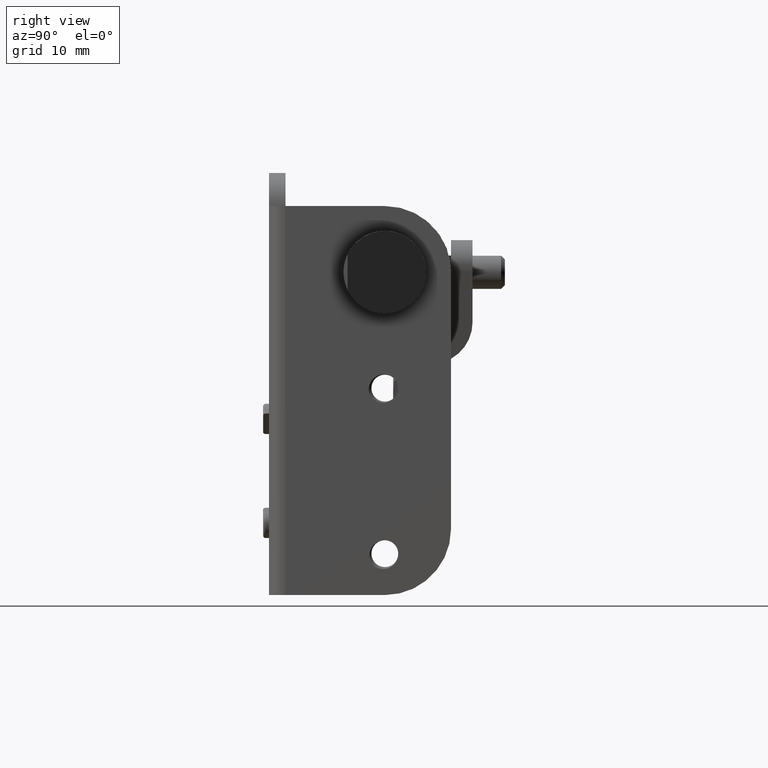
[diagram: clean part render]
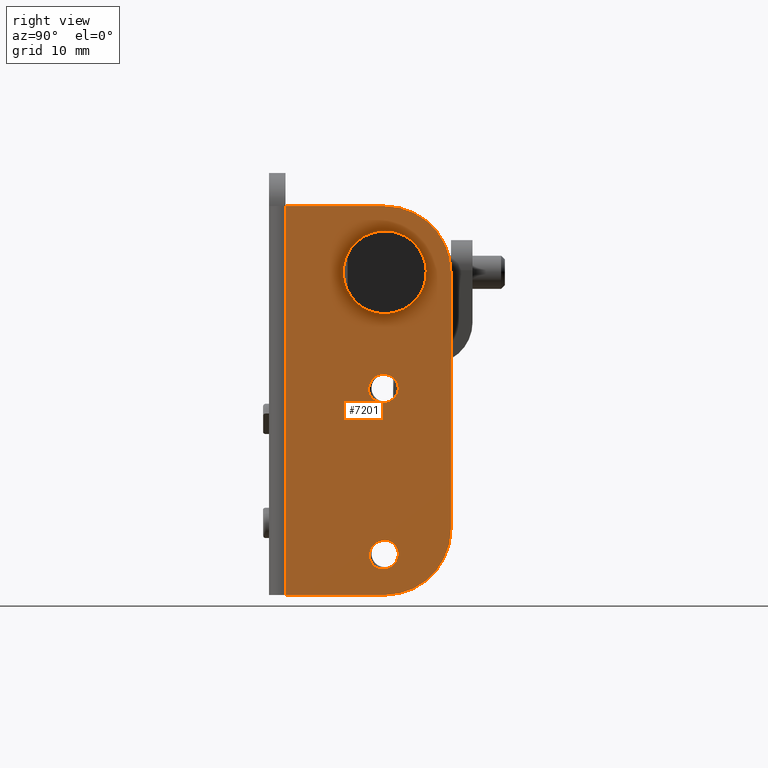
[diagram: same view with one face highlighted and labeled with its STEP entity id]
A machine part, right view. The second image highlights one B-rep face of the part: STEP entity #7201.
In plain terms, the highlighted planar face has unit normal (1, -0, 0).
Its self-contained STEP definition (entity closure, byte-faithful):
#54 = CARTESIAN_POINT ( 'NONE',  ( -46.64999999971276900, 0.09089688833235407000, -19.08893908705833600 ) ) ;
#95 = CARTESIAN_POINT ( 'NONE',  ( -46.64999999971625000, 0.8721309335700865300, -42.48951355338284900 ) ) ;
#153 = EDGE_CURVE ( 'NONE', #14601, #1278, #1425, .T. ) ;
#662 = ORIENTED_EDGE ( 'NONE', *, *, #11229, .T. ) ;
#823 = EDGE_LOOP ( 'NONE', ( #9566, #11637, #2603, #4602 ) ) ;
#892 = CARTESIAN_POINT ( 'NONE',  ( -46.64999999971605100, 1.702725412684022800, -41.69978814831674200 ) ) ;
#944 = CARTESIAN_POINT ( 'NONE',  ( -46.64999999971573900, 0.8146030521401440600, -39.31506493646259100 ) ) ;
#1065 = CARTESIAN_POINT ( 'NONE',  ( -46.64999999971318100, 1.236670818647044500, -22.18215370323088500 ) ) ;
#1078 = FACE_OUTER_BOUND ( 'NONE', #4662, .T. ) ;
#1232 = CARTESIAN_POINT ( 'NONE',  ( -46.64999999971299600, 1.965852508492017300, -20.95167811695760600 ) ) ;
#1278 = VERTEX_POINT ( 'NONE', #7061 ) ;
#1290 = CARTESIAN_POINT ( 'NONE',  ( -46.64999999970430600, -0.2025517188867979900, -19.13767317145630300 ) ) ;
#1310 = CIRCLE ( 'NONE', #14062, 8.000000000000000000 ) ;
#1332 = CARTESIAN_POINT ( 'NONE',  ( -46.64999999971613000, 1.264839274640282100, -42.28761542443570700 ) ) ;
#1425 = CIRCLE ( 'NONE', #5640, 5.000000000000000000 ) ;
#1531 = AXIS2_PLACEMENT_3D ( 'NONE', #10082, #2753, #11316 ) ;
#1682 = LINE ( 'NONE', #14311, #12609 ) ;
#1911 = VECTOR ( 'NONE', #7607, 1000.000000000000000 ) ;
#1986 = VERTEX_POINT ( 'NONE', #7066 ) ;
#2018 = DIRECTION ( 'NONE',  ( 1.000000000000000000, 0.0000000000000000000, -1.487433108121418000E-013 ) ) ;
#2120 = CARTESIAN_POINT ( 'NONE',  ( -46.64999999971602300, 1.834130868375699200, -41.27360664653349400 ) ) ;
#2164 = CARTESIAN_POINT ( 'NONE',  ( -46.64999999970980600, 1.388993087214630100E-011, 1.250000000007356100 ) ) ;
#2230 = VERTEX_POINT ( 'NONE', #9749 ) ;
#2243 = CARTESIAN_POINT ( 'NONE',  ( -46.64999999971320200, -0.7424839771661885200, -22.26566412599033700 ) ) ;
#2296 = CARTESIAN_POINT ( 'NONE',  ( -46.64999999971317400, 1.567460671636538700, -21.88703624140788800 ) ) ;
#2349 = ORIENTED_EDGE ( 'NONE', *, *, #12861, .T. ) ;
#2393 = DIRECTION ( 'NONE',  ( 1.000000000000000000, 0.0000000000000000000, -1.487433108121418000E-013 ) ) ;
#2408 = DIRECTION ( 'NONE',  ( -1.000000000000000000, 0.0000000000000000000, 1.487433108121418000E-013 ) ) ;
#2466 = CARTESIAN_POINT ( 'NONE',  ( -46.64999999971294600, 1.915670384260544900, -20.51059797480375800 ) ) ;
#2511 = EDGE_LOOP ( 'NONE', ( #7217, #3321 ) ) ;
#2513 = CARTESIAN_POINT ( 'NONE',  ( -46.64999999971611500, -1.250966825152425700, -41.89560616161396900 ) ) ;
#2538 = CARTESIAN_POINT ( 'NONE',  ( -46.64999999970450500, -1.734723475976804600E-014, -40.74999999973114500 ) ) ;
#2603 = ORIENTED_EDGE ( 'NONE', *, *, #4317, .T. ) ;
#2714 = ORIENTED_EDGE ( 'NONE', *, *, #8209, .F. ) ;
#2753 = DIRECTION ( 'NONE',  ( -1.000000000000000000, 0.0000000000000000000, 1.487433108121418000E-013 ) ) ;
#2898 = CARTESIAN_POINT ( 'NONE',  ( -46.64999999971679800, 1012.000000000014000, -45.75000000009929800 ) ) ;
#2919 = EDGE_CURVE ( 'NONE', #11443, #13079, #11309, .T. ) ;
#2940 = DIRECTION ( 'NONE',  ( 1.487433108121418000E-013, -0.0000000000000000000, 1.000000000000000000 ) ) ;
#3321 = ORIENTED_EDGE ( 'NONE', *, *, #153, .F. ) ;
#3350 = CARTESIAN_POINT ( 'NONE',  ( -46.64999999971597300, 1.859088894053053200, -40.82883381452216300 ) ) ;
#3429 = LINE ( 'NONE', #6636, #6313 ) ;
#3530 = CARTESIAN_POINT ( 'NONE',  ( -46.64999999971329500, 1.820354897136716700, -21.52055322034646400 ) ) ;
#3671 = PLANE ( 'NONE',  #10043 ) ;
#3699 = VERTEX_POINT ( 'NONE', #6531 ) ;
#3700 = CARTESIAN_POINT ( 'NONE',  ( -46.64999999971289000, 1.632001743223606000, -19.82628685267813000 ) ) ;
#3740 = CARTESIAN_POINT ( 'NONE',  ( -46.64999999971617900, -0.9475312145052203800, -42.21755808698307500 ) ) ;
#3768 = DIRECTION ( 'NONE',  ( 1.494530994687709500E-013, 0.0000000000000000000, 1.000000000000000000 ) ) ;
#3910 = EDGE_CURVE ( 'NONE', #4133, #11443, #3429, .T. ) ;
#4133 = VERTEX_POINT ( 'NONE', #14078 ) ;
#4285 = AXIS2_PLACEMENT_3D ( 'NONE', #9358, #2018, #10581 ) ;
#4317 = EDGE_CURVE ( 'NONE', #3699, #1986, #8412, .T. ) ;
#4526 = CARTESIAN_POINT ( 'NONE',  ( -46.64999999971610800, 1.381991690599964100, -42.19571745729765400 ) ) ;
#4578 = CARTESIAN_POINT ( 'NONE',  ( -46.64999999971590900, 1.776719263264414000, -40.39250417200466400 ) ) ;
#4583 = VERTEX_POINT ( 'NONE', #11634 ) ;
#4602 = ORIENTED_EDGE ( 'NONE', *, *, #9892, .T. ) ;
#4662 = EDGE_LOOP ( 'NONE', ( #7657, #9723, #10057, #2714, #6556, #14882 ) ) ;
#4761 = CARTESIAN_POINT ( 'NONE',  ( -46.64999999971300300, 1.937557641454315000, -21.24585318974035200 ) ) ;
#4892 = DIRECTION ( 'NONE',  ( -1.000000000000000000, 0.0000000000000000000, 1.487433108121418000E-013 ) ) ;
#4923 = CARTESIAN_POINT ( 'NONE',  ( -46.64999999971280400, 1.205448159805327000, -19.41736275988791900 ) ) ;
#4970 = CARTESIAN_POINT ( 'NONE',  ( -46.64999999971620100, -0.5723667568289501100, -42.45310239943424300 ) ) ;
#5230 = EDGE_CURVE ( 'NONE', #4133, #10489, #10692, .T. ) ;
#5290 = VERTEX_POINT ( 'NONE', #10280 ) ;
#5640 = AXIS2_PLACEMENT_3D ( 'NONE', #9742, #2408, #10976 ) ;
#5804 = CARTESIAN_POINT ( 'NONE',  ( -46.64999999971581000, 1.591178348747927900, -39.98663070929193000 ) ) ;
#5826 = CARTESIAN_POINT ( 'NONE',  ( -46.64999999971550400, 1.379278635749160100E-011, -37.75000000009934800 ) ) ;
#5930 = CARTESIAN_POINT ( 'NONE',  ( -46.64999999971324500, -0.4712564923769930700, -22.40693383746964400 ) ) ;
#6103 = CARTESIAN_POINT ( 'NONE',  ( -46.64999999971300300, 1.937557641454315000, -21.24585318974035200 ) ) ;
#6160 = CARTESIAN_POINT ( 'NONE',  ( -46.64999999971276200, 0.8169585473405255300, -19.20549988106839800 ) ) ;
#6196 = CARTESIAN_POINT ( 'NONE',  ( -46.64999999971622200, -0.006639194054521658200, -42.62544154485271300 ) ) ;
#6313 = VECTOR ( 'NONE', #2940, 1000.000000000000000 ) ;
#6531 = CARTESIAN_POINT ( 'NONE',  ( -46.64999999970426400, -1.714822965490660100E-014, -39.12499999973114500 ) ) ;
#6556 = ORIENTED_EDGE ( 'NONE', *, *, #11202, .T. ) ;
#6559 = AXIS2_PLACEMENT_3D ( 'NONE', #7016, #15598, #8253 ) ;
#6636 = CARTESIAN_POINT ( 'NONE',  ( -46.64999999971670500, 12.00000000001368000, -45.75000000009929800 ) ) ;
#6719 = CARTESIAN_POINT ( 'NONE',  ( -46.64999999971610800, 1.381991690599964100, -42.19571745729765400 ) ) ;
#7016 = CARTESIAN_POINT ( 'NONE',  ( -46.64999999970450500, -1.734723475976804600E-014, -20.74999999973155000 ) ) ;
#7046 = CARTESIAN_POINT ( 'NONE',  ( -46.64999999971577400, 1.311407139037482000, -39.63819844351694900 ) ) ;
#7061 = CARTESIAN_POINT ( 'NONE',  ( -46.64999999971164600, -1.561251128379124800E-014, -11.74999999968236100 ) ) ;
#7066 = CARTESIAN_POINT ( 'NONE',  ( -46.64999999970460500, -1.504973403622319900, -41.36292744599990100 ) ) ;
#7071 = DIRECTION ( 'NONE',  ( 1.483188571960170100E-013, 0.0000000000000000000, 1.000000000000000000 ) ) ;
#7118 = CARTESIAN_POINT ( 'NONE',  ( -46.64999999970480400, -0.9599977054716180000, -22.06111761668634900 ) ) ;
#7168 = CARTESIAN_POINT ( 'NONE',  ( -46.64999999971325900, 0.4167738382541936700, -22.51553001739955200 ) ) ;
#7201 = ADVANCED_FACE ( 'NONE', ( #10851, #7595, #14109, #1078 ), #3671, .T. ) ;
#7217 = ORIENTED_EDGE ( 'NONE', *, *, #7696, .F. ) ;
#7388 = CARTESIAN_POINT ( 'NONE',  ( -46.64999999971276900, 0.3875253492878783000, -19.09838486461692100 ) ) ;
#7436 = CARTESIAN_POINT ( 'NONE',  ( -46.64999999971621500, 0.7302747381048413400, -42.53710196998805800 ) ) ;
#7595 = FACE_BOUND ( 'NONE', #823, .T. ) ;
#7607 = DIRECTION ( 'NONE',  ( 0.0000000000000000000, -1.000000000000000000, 0.0000000000000000000 ) ) ;
#7657 = ORIENTED_EDGE ( 'NONE', *, *, #2919, .F. ) ;
#7696 = EDGE_CURVE ( 'NONE', #1278, #14601, #9308, .T. ) ;
#7803 = CIRCLE ( 'NONE', #6559, 1.625000000000001300 ) ;
#7863 = CARTESIAN_POINT ( 'NONE',  ( -46.64999999970430600, -0.2025517188867979900, -19.13767317145630300 ) ) ;
#8209 = EDGE_CURVE ( 'NONE', #2230, #10489, #13132, .T. ) ;
#8228 = CARTESIAN_POINT ( 'NONE',  ( -46.64999999971610100, 1.563046327088436900, -41.96018012836470500 ) ) ;
#8253 = DIRECTION ( 'NONE',  ( 1.494530994687709500E-013, 0.0000000000000000000, 1.000000000000000000 ) ) ;
#8278 = CARTESIAN_POINT ( 'NONE',  ( -46.64999999971574600, 0.9511133960113197200, -39.37962266766039900 ) ) ;
#8402 = CARTESIAN_POINT ( 'NONE',  ( -46.64999999971320200, 0.9790155027907495600, -22.33213566365936500 ) ) ;
#8412 = CIRCLE ( 'NONE', #4285, 1.625000000000001300 ) ;
#8623 = CARTESIAN_POINT ( 'NONE',  ( -46.64999999971272600, -0.05783793411039898200, -19.10250277246377600 ) ) ;
#8661 = CARTESIAN_POINT ( 'NONE',  ( -46.64999999971622900, 1.138105179793230200, -42.36524741936026600 ) ) ;
#8985 = B_SPLINE_CURVE_WITH_KNOTS ( 'NONE', 3,
 ( #4526, #13096, #8228, #892, #9453, #2120, #10689, #3350, #11909, #4578, #13150, #5804, #14392, #7046, #15627, #8278, #944, #9509 ),
 .UNSPECIFIED., .F., .F.,
 ( 4, 2, 2, 2, 2, 2, 2, 2, 4 ),
 ( 7.663399883020687300E-018, 0.0004427117135178707500, 0.0008854234270357339100, 0.001328135140553597000, 0.001770846854071460000, 0.002213558567589323200, 0.002656270281107186600, 0.003098981994625049600, 0.003541693708142912600 ),
 .UNSPECIFIED. ) ;
#9088 = CARTESIAN_POINT ( 'NONE',  ( -46.64999999971090000, -7.999999999986229700, -6.749999999992640600 ) ) ;
#9222 = VERTEX_POINT ( 'NONE', #9088 ) ;
#9253 = VERTEX_POINT ( 'NONE', #7863 ) ;
#9308 = CIRCLE ( 'NONE', #1531, 5.000000000000000000 ) ;
#9357 = EDGE_CURVE ( 'NONE', #10404, #5290, #8985, .T. ) ;
#9358 = CARTESIAN_POINT ( 'NONE',  ( -46.64999999970450500, -1.734723475976804600E-014, -40.74999999973114500 ) ) ;
#9453 = CARTESIAN_POINT ( 'NONE',  ( -46.64999999971606600, 1.759063125924220000, -41.55935410025991700 ) ) ;
#9509 = CARTESIAN_POINT ( 'NONE',  ( -46.64999999970430600, 0.6717592260543320300, -39.27034985790339800 ) ) ;
#9566 = ORIENTED_EDGE ( 'NONE', *, *, #9357, .T. ) ;
#9621 = CARTESIAN_POINT ( 'NONE',  ( -46.64999999971320200, 1.354273310895986300, -22.09302482123454700 ) ) ;
#9683 = CARTESIAN_POINT ( 'NONE',  ( -46.64999999971300300, 1.937557641454315000, -21.24585318974035200 ) ) ;
#9723 = ORIENTED_EDGE ( 'NONE', *, *, #3910, .F. ) ;
#9731 = CARTESIAN_POINT ( 'NONE',  ( -46.64999999971090000, 1.379278635749160100E-011, -6.749999999992640600 ) ) ;
#9742 = CARTESIAN_POINT ( 'NONE',  ( -46.64999999971090000, -1.561251128379124800E-014, -6.749999999682359900 ) ) ;
#9749 = CARTESIAN_POINT ( 'NONE',  ( -46.64999999971550400, -7.999999999986229700, -37.75000000009934800 ) ) ;
#9799 = CARTESIAN_POINT ( 'NONE',  ( -46.64999999971296800, 1.943919892316134700, -20.65828382365752700 ) ) ;
#9835 = CARTESIAN_POINT ( 'NONE',  ( -46.64999999971607300, -1.404779617166848500, -41.64081454331859800 ) ) ;
#9892 = EDGE_CURVE ( 'NONE', #1986, #10404, #13513, .T. ) ;
#9895 = CARTESIAN_POINT ( 'NONE',  ( -46.64999999971610800, 1.381991690599964100, -42.19571745729765400 ) ) ;
#9927 = CIRCLE ( 'NONE', #11490, 1.625000000000001300 ) ;
#10043 = AXIS2_PLACEMENT_3D ( 'NONE', #12237, #4892, #13464 ) ;
#10057 = ORIENTED_EDGE ( 'NONE', *, *, #5230, .T. ) ;
#10082 = CARTESIAN_POINT ( 'NONE',  ( -46.64999999971090000, -1.561251128379124800E-014, -6.749999999682359900 ) ) ;
#10280 = CARTESIAN_POINT ( 'NONE',  ( -46.64999999970430600, 0.6717592260543320300, -39.27034985790339800 ) ) ;
#10404 = VERTEX_POINT ( 'NONE', #6719 ) ;
#10453 = B_SPLINE_CURVE_WITH_KNOTS ( 'NONE', 3,
 ( #7118, #2243, #5930, #14519, #7168, #15748, #8402, #1065, #9621, #2296, #10867, #3530, #12099, #4761 ),
 .UNSPECIFIED., .F., .F.,
 ( 4, 2, 2, 2, 2, 2, 4 ),
 ( 3.204974187239153300E-005, 0.0009199748333497073300, 0.001807899924827023100, 0.002251862470565679200, 0.002695825016304336100, 0.003139787562042992700, 0.003583750107781649600 ),
 .UNSPECIFIED. ) ;
#10489 = VERTEX_POINT ( 'NONE', #15354 ) ;
#10539 = AXIS2_PLACEMENT_3D ( 'NONE', #5826, #14413, #7071 ) ;
#10581 = DIRECTION ( 'NONE',  ( 1.494530994687709500E-013, 0.0000000000000000000, 1.000000000000000000 ) ) ;
#10689 = CARTESIAN_POINT ( 'NONE',  ( -46.64999999971600900, 1.854388998353459400, -41.12754920986263600 ) ) ;
#10692 = LINE ( 'NONE', #2898, #11103 ) ;
#10851 = FACE_BOUND ( 'NONE', #2511, .T. ) ;
#10867 = CARTESIAN_POINT ( 'NONE',  ( -46.64999999971331600, 1.661860422797727600, -21.76983186762900500 ) ) ;
#10963 = DIRECTION ( 'NONE',  ( 1.483188571960170100E-013, 0.0000000000000000000, 1.000000000000000000 ) ) ;
#10976 = DIRECTION ( 'NONE',  ( 1.484923295436146900E-013, 0.0000000000000000000, 1.000000000000000000 ) ) ;
#11034 = CARTESIAN_POINT ( 'NONE',  ( -46.64999999971289700, 1.783925360271541000, -20.08963685623451000 ) ) ;
#11079 = CARTESIAN_POINT ( 'NONE',  ( -46.64999999971615800, -1.159044366369742100, -42.01129726053723300 ) ) ;
#11103 = VECTOR ( 'NONE', #12692, 1000.000000000000000 ) ;
#11108 = DIRECTION ( 'NONE',  ( 1.000000000000000000, 0.0000000000000000000, -1.487433108121418000E-013 ) ) ;
#11202 = EDGE_CURVE ( 'NONE', #2230, #9222, #1682, .T. ) ;
#11229 = EDGE_CURVE ( 'NONE', #9253, #4583, #7803, .T. ) ;
#11309 = LINE ( 'NONE', #13723, #1911 ) ;
#11316 = DIRECTION ( 'NONE',  ( 1.484923295436146900E-013, 0.0000000000000000000, 1.000000000000000000 ) ) ;
#11443 = VERTEX_POINT ( 'NONE', #14416 ) ;
#11490 = AXIS2_PLACEMENT_3D ( 'NONE', #2538, #11108, #3768 ) ;
#11634 = CARTESIAN_POINT ( 'NONE',  ( -46.64999999970480400, -0.9599977054716180000, -22.06111761668634900 ) ) ;
#11637 = ORIENTED_EDGE ( 'NONE', *, *, #11717, .T. ) ;
#11717 = EDGE_CURVE ( 'NONE', #5290, #3699, #9927, .T. ) ;
#11909 = CARTESIAN_POINT ( 'NONE',  ( -46.64999999971594500, 1.843246817527873600, -40.68081184964800900 ) ) ;
#12099 = CARTESIAN_POINT ( 'NONE',  ( -46.64999999971303900, 1.886594706882198400, -21.38635694131715300 ) ) ;
#12213 = CARTESIAN_POINT ( 'NONE',  ( -46.64999999971298900, 1.960278106660827900, -21.09863238672247500 ) ) ;
#12237 = CARTESIAN_POINT ( 'NONE',  ( -46.64999999971670500, 1012.000000000014000, -45.75000000009929800 ) ) ;
#12255 = CARTESIAN_POINT ( 'NONE',  ( -46.64999999970460500, -1.504973403622319900, -41.36292744599990100 ) ) ;
#12270 = CARTESIAN_POINT ( 'NONE',  ( -46.64999999971284000, 1.323711915618938100, -19.51095434892176800 ) ) ;
#12310 = CARTESIAN_POINT ( 'NONE',  ( -46.64999999971617200, -0.8277201268045424300, -42.30762235648243300 ) ) ;
#12609 = VECTOR ( 'NONE', #15550, 1000.000000000000000 ) ;
#12673 = VERTEX_POINT ( 'NONE', #9683 ) ;
#12692 = DIRECTION ( 'NONE',  ( 0.0000000000000000000, -1.000000000000000000, 0.0000000000000000000 ) ) ;
#12861 = EDGE_CURVE ( 'NONE', #12673, #9253, #13000, .T. ) ;
#13000 = B_SPLINE_CURVE_WITH_KNOTS ( 'NONE', 3,
 ( #6103, #12213, #1232, #9799, #2466, #11034, #3700, #12270, #4923, #13497, #6160, #14743, #7388, #54, #8623, #1290 ),
 .UNSPECIFIED., .F., .F.,
 ( 4, 2, 2, 2, 2, 2, 2, 4 ),
 ( 0.0000000000000000000, 0.0004405496246921122100, 0.0008810992493842244100, 0.001762198498768458600, 0.002202748123460572100, 0.002643297748152685000, 0.003083847372844797800, 0.003524396997536911100 ),
 .UNSPECIFIED. ) ;
#13079 = VERTEX_POINT ( 'NONE', #2164 ) ;
#13096 = CARTESIAN_POINT ( 'NONE',  ( -46.64999999971608000, 1.479605602768749000, -42.08220577106581600 ) ) ;
#13132 = CIRCLE ( 'NONE', #10539, 8.000000000000000000 ) ;
#13150 = CARTESIAN_POINT ( 'NONE',  ( -46.64999999971586000, 1.725044559677752800, -40.25025977513196600 ) ) ;
#13355 = EDGE_CURVE ( 'NONE', #13079, #9222, #1310, .T. ) ;
#13358 = CARTESIAN_POINT ( 'NONE',  ( -46.64999999971016100, -1.622483468336492400E-014, -1.749999999682359900 ) ) ;
#13464 = DIRECTION ( 'NONE',  ( 1.487433108121418000E-013, 0.0000000000000000000, 1.000000000000000000 ) ) ;
#13497 = CARTESIAN_POINT ( 'NONE',  ( -46.64999999971277600, 0.9535744785687803000, -19.26574539197807200 ) ) ;
#13513 = B_SPLINE_CURVE_WITH_KNOTS ( 'NONE', 3,
 ( #12255, #14668, #9835, #2513, #11079, #3740, #12310, #4970, #13539, #6196, #14784, #7436, #95, #8661, #1332, #9895 ),
 .UNSPECIFIED., .F., .F.,
 ( 4, 2, 2, 2, 2, 2, 2, 4 ),
 ( 3.427926840941082900E-005, 0.0004765611961539539400, 0.0009188431238984970600, 0.001361125051643040700, 0.001803406979387584300, 0.002687970834876676500, 0.003130252762621220100, 0.003572534690365763700 ),
 .UNSPECIFIED. ) ;
#13539 = CARTESIAN_POINT ( 'NONE',  ( -46.64999999971620100, -0.4332833418833604300, -42.51039266025214400 ) ) ;
#13723 = CARTESIAN_POINT ( 'NONE',  ( -46.64999999970980600, 1012.000000000014000, 1.250000000007356100 ) ) ;
#14062 = AXIS2_PLACEMENT_3D ( 'NONE', #9731, #2393, #10963 ) ;
#14078 = CARTESIAN_POINT ( 'NONE',  ( -46.64999999971679800, 12.00000000001368000, -45.75000000009929800 ) ) ;
#14109 = FACE_BOUND ( 'NONE', #15528, .T. ) ;
#14311 = CARTESIAN_POINT ( 'NONE',  ( -46.64999999971670500, -7.999999999986229700, -45.75000000009929800 ) ) ;
#14392 = CARTESIAN_POINT ( 'NONE',  ( -46.64999999971581000, 1.508421029513192600, -39.86179073121147800 ) ) ;
#14413 = DIRECTION ( 'NONE',  ( 1.000000000000000000, 0.0000000000000000000, -1.487433108121418000E-013 ) ) ;
#14416 = CARTESIAN_POINT ( 'NONE',  ( -46.64999999970980600, 12.00000000001368000, 1.250000000007356100 ) ) ;
#14519 = CARTESIAN_POINT ( 'NONE',  ( -46.64999999971326600, 0.1084543938720002900, -22.53114409472693300 ) ) ;
#14601 = VERTEX_POINT ( 'NONE', #13358 ) ;
#14668 = CARTESIAN_POINT ( 'NONE',  ( -46.64999999971603000, -1.464899729734862900, -41.50618832672475400 ) ) ;
#14743 = CARTESIAN_POINT ( 'NONE',  ( -46.64999999971274700, 0.5327331544142353000, -19.12172415118733000 ) ) ;
#14784 = CARTESIAN_POINT ( 'NONE',  ( -46.64999999971624300, 0.2967864215449277400, -42.62897122026715400 ) ) ;
#14880 = ORIENTED_EDGE ( 'NONE', *, *, #15853, .T. ) ;
#14882 = ORIENTED_EDGE ( 'NONE', *, *, #13355, .F. ) ;
#15354 = CARTESIAN_POINT ( 'NONE',  ( -46.64999999971679800, 1.388993087214630100E-011, -45.75000000009929800 ) ) ;
#15528 = EDGE_LOOP ( 'NONE', ( #2349, #662, #14880 ) ) ;
#15550 = DIRECTION ( 'NONE',  ( 1.487433108121418000E-013, -0.0000000000000000000, 1.000000000000000000 ) ) ;
#15598 = DIRECTION ( 'NONE',  ( 1.000000000000000000, 0.0000000000000000000, -1.487433108121418000E-013 ) ) ;
#15627 = CARTESIAN_POINT ( 'NONE',  ( -46.64999999971577400, 1.199913037313560200, -39.54180346075515500 ) ) ;
#15748 = CARTESIAN_POINT ( 'NONE',  ( -46.64999999971320200, 0.8421213537887937100, -22.39084635472344700 ) ) ;
#15853 = EDGE_CURVE ( 'NONE', #4583, #12673, #10453, .T. ) ;